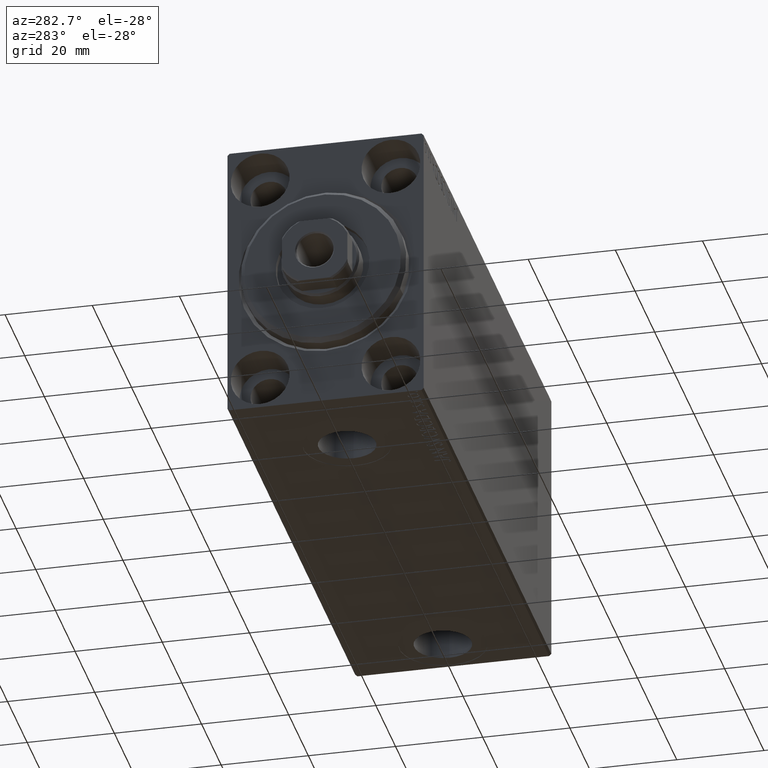
[diagram: clean part render]
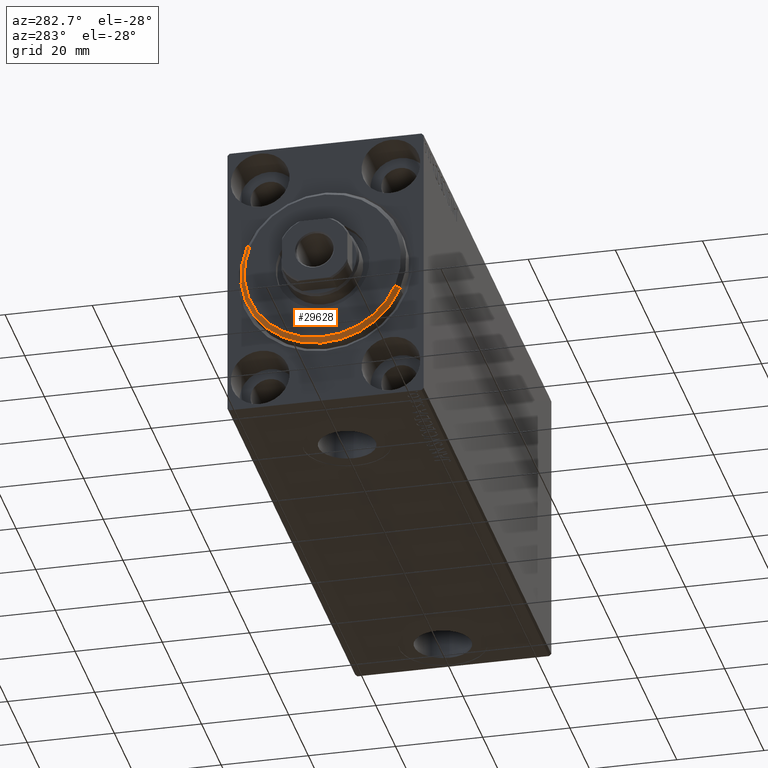
[diagram: same view with one face highlighted and labeled with its STEP entity id]
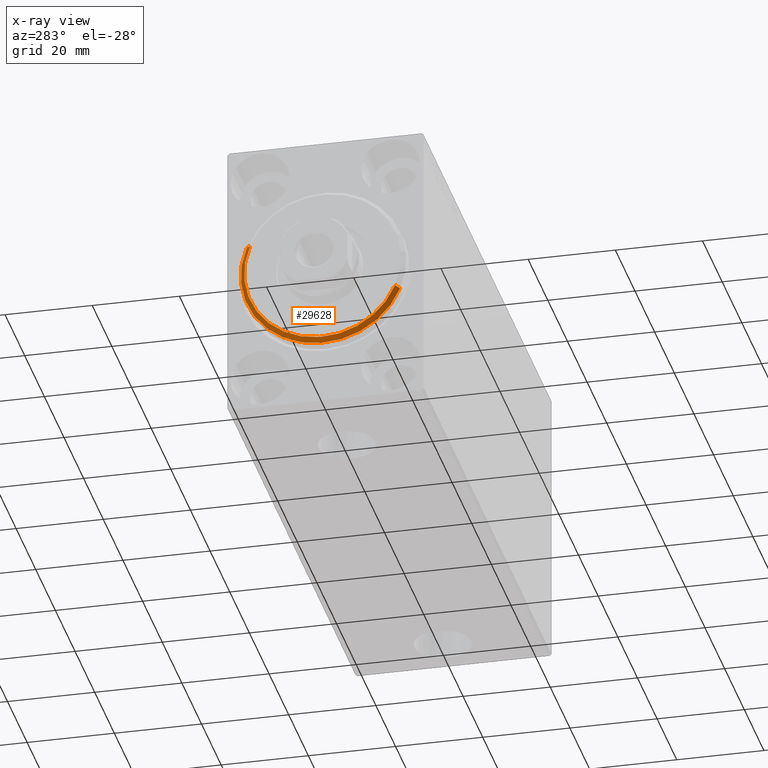
[diagram: x-ray of the same camera — body ghosted, the highlighted face saturated]
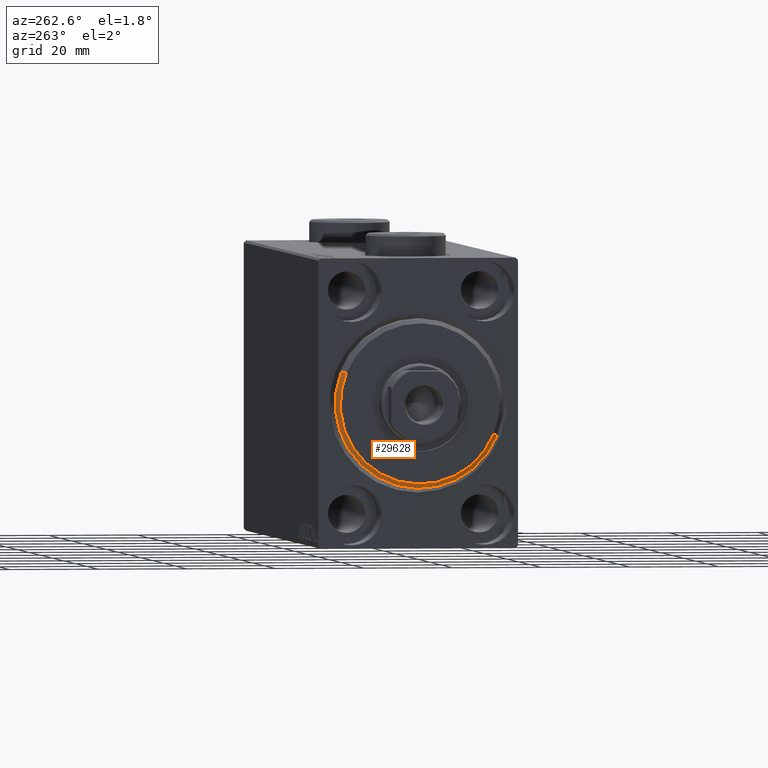
[diagram: same view with one face highlighted and labeled with its STEP entity id]
A machine part, auxiliary view. The second image highlights one B-rep face of the part: STEP entity #29628.
The next image is the same camera in x-ray: the body ghosted, the highlighted face saturated — about 0% of this face is hidden behind the body in this view.
A second angle (auxiliary view) of the same face is appended — the face is thin or edge-on in the first view.
In plain terms, the highlighted conical surface has half-angle 45 deg.
Its self-contained STEP definition (entity closure, byte-faithful):
#1011 = ORIENTED_EDGE ( 'NONE', *, *, #39779, .F. ) ;
#2164 = AXIS2_PLACEMENT_3D ( 'NONE', #24015, #3161, #10043 ) ;
#3161 = DIRECTION ( 'NONE',  ( -1.000000000000000000, 0.000000000000000000, 0.000000000000000000 ) ) ;
#3271 = CARTESIAN_POINT ( 'NONE',  ( 3.000000000000000000, 0.000000000000000000, 17.99999999999999645 ) ) ;
#3325 = CONICAL_SURFACE ( 'NONE', #19454, 17.99999999999999645, 0.7853981633974466137 ) ;
#6666 = VECTOR ( 'NONE', #9934, 1000.000000000000000 ) ;
#7222 = ORIENTED_EDGE ( 'NONE', *, *, #8537, .T. ) ;
#7259 = EDGE_LOOP ( 'NONE', ( #27601, #7222, #1011, #36403 ) ) ;
#8122 = VERTEX_POINT ( 'NONE', #29784 ) ;
#8475 = EDGE_CURVE ( 'NONE', #8122, #40115, #39647, .T. ) ;
#8537 = EDGE_CURVE ( 'NONE', #8122, #19490, #26078, .T. ) ;
#9934 = DIRECTION ( 'NONE',  ( -0.7071067811865487940, 0.000000000000000000, 0.7071067811865463515 ) ) ;
#10043 = DIRECTION ( 'NONE',  ( 0.000000000000000000, 0.000000000000000000, -1.000000000000000000 ) ) ;
#11235 = CARTESIAN_POINT ( 'NONE',  ( 1.999999999999992228, 2.326828918379970970E-15, -19.00000000000000000 ) ) ;
#12975 = EDGE_CURVE ( 'NONE', #40115, #44294, #20246, .T. ) ;
#13609 = FACE_OUTER_BOUND ( 'NONE', #7259, .T. ) ;
#17758 = VECTOR ( 'NONE', #30624, 1000.000000000000000 ) ;
#18974 = CARTESIAN_POINT ( 'NONE',  ( 3.000000000000000000, 0.000000000000000000, 0.000000000000000000 ) ) ;
#19204 = DIRECTION ( 'NONE',  ( 0.000000000000000000, 0.000000000000000000, -1.000000000000000000 ) ) ;
#19454 = AXIS2_PLACEMENT_3D ( 'NONE', #20926, #34413, #37845 ) ;
#19490 = VERTEX_POINT ( 'NONE', #11235 ) ;
#20246 = LINE ( 'NONE', #3271, #6666 ) ;
#20521 = CARTESIAN_POINT ( 'NONE',  ( 3.000000000000000000, 0.000000000000000000, 17.99999999999999645 ) ) ;
#20926 = CARTESIAN_POINT ( 'NONE',  ( 3.000000000000000000, 0.000000000000000000, 0.000000000000000000 ) ) ;
#22106 = CARTESIAN_POINT ( 'NONE',  ( 1.999999999999992228, 0.000000000000000000, 19.00000000000000000 ) ) ;
#22404 = DIRECTION ( 'NONE',  ( 1.000000000000000000, -0.000000000000000000, 0.000000000000000000 ) ) ;
#24015 = CARTESIAN_POINT ( 'NONE',  ( 1.999999999999992228, 0.000000000000000000, 0.000000000000000000 ) ) ;
#25792 = AXIS2_PLACEMENT_3D ( 'NONE', #18974, #22404, #19204 ) ;
#26078 = LINE ( 'NONE', #40004, #17758 ) ;
#27601 = ORIENTED_EDGE ( 'NONE', *, *, #8475, .F. ) ;
#29628 = ADVANCED_FACE ( 'NONE', ( #13609 ), #3325, .T. ) ;
#29784 = CARTESIAN_POINT ( 'NONE',  ( 3.000000000000000000, 2.265596578422603002E-15, -17.99999999999999645 ) ) ;
#30624 = DIRECTION ( 'NONE',  ( -0.7071067811865487940, 8.659560562354918067E-17, -0.7071067811865463515 ) ) ;
#34283 = CIRCLE ( 'NONE', #2164, 19.00000000000000000 ) ;
#34413 = DIRECTION ( 'NONE',  ( -1.000000000000000000, 0.000000000000000000, 0.000000000000000000 ) ) ;
#36403 = ORIENTED_EDGE ( 'NONE', *, *, #12975, .F. ) ;
#37845 = DIRECTION ( 'NONE',  ( 0.000000000000000000, 0.000000000000000000, 1.000000000000000000 ) ) ;
#39647 = CIRCLE ( 'NONE', #25792, 17.99999999999999645 ) ;
#39779 = EDGE_CURVE ( 'NONE', #44294, #19490, #34283, .T. ) ;
#40004 = CARTESIAN_POINT ( 'NONE',  ( 3.000000000000000000, 2.204364238465235033E-15, -17.99999999999999645 ) ) ;
#40115 = VERTEX_POINT ( 'NONE', #20521 ) ;
#44294 = VERTEX_POINT ( 'NONE', #22106 ) ;